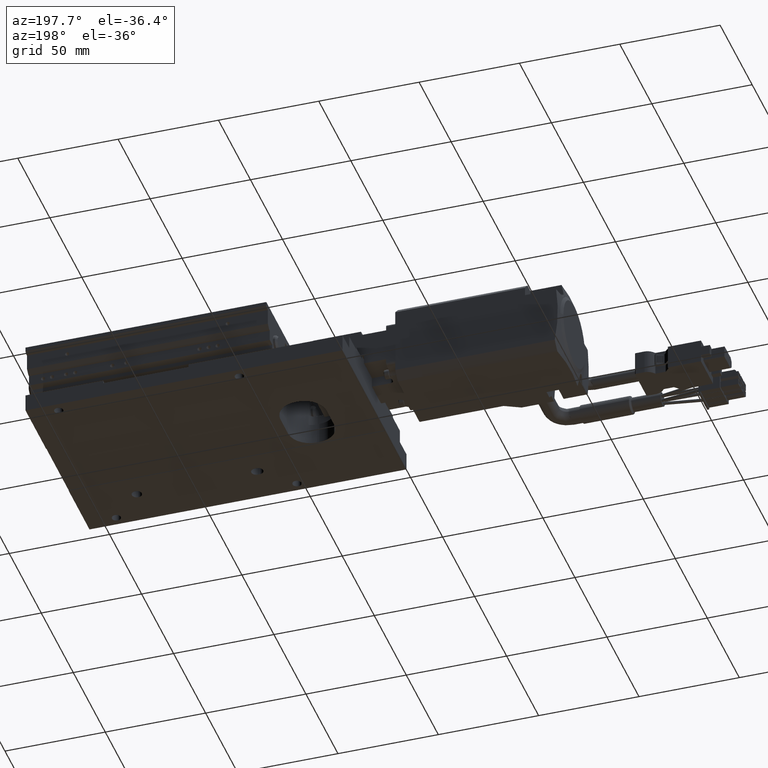
[diagram: clean part render]
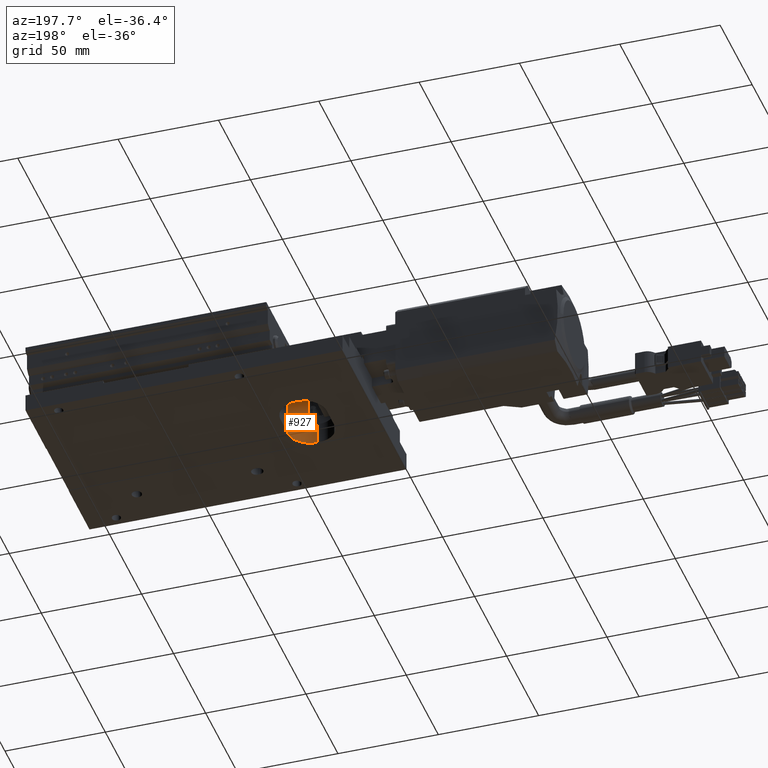
[diagram: same view with one face highlighted and labeled with its STEP entity id]
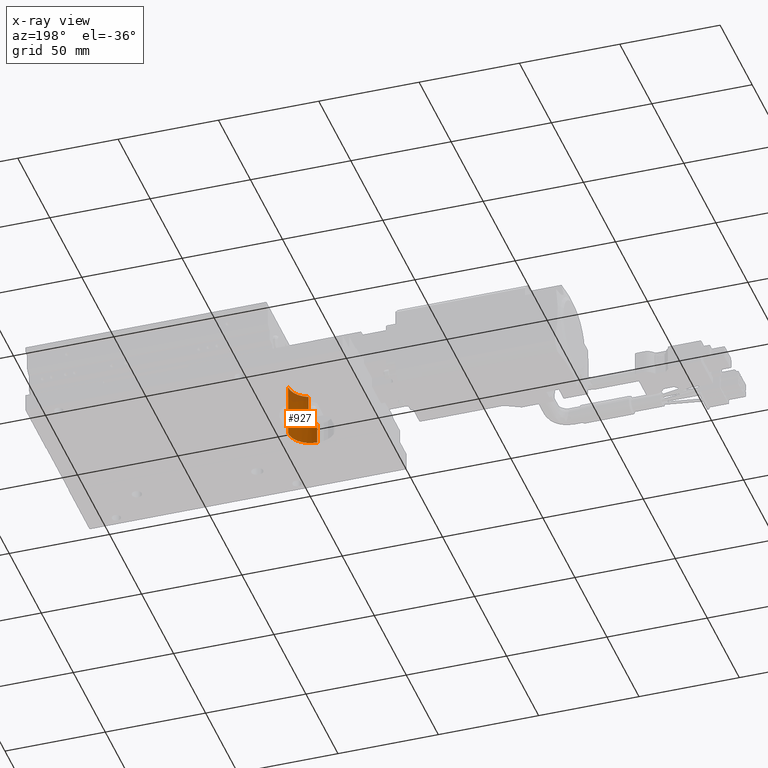
[diagram: x-ray of the same camera — body ghosted, the highlighted face saturated]
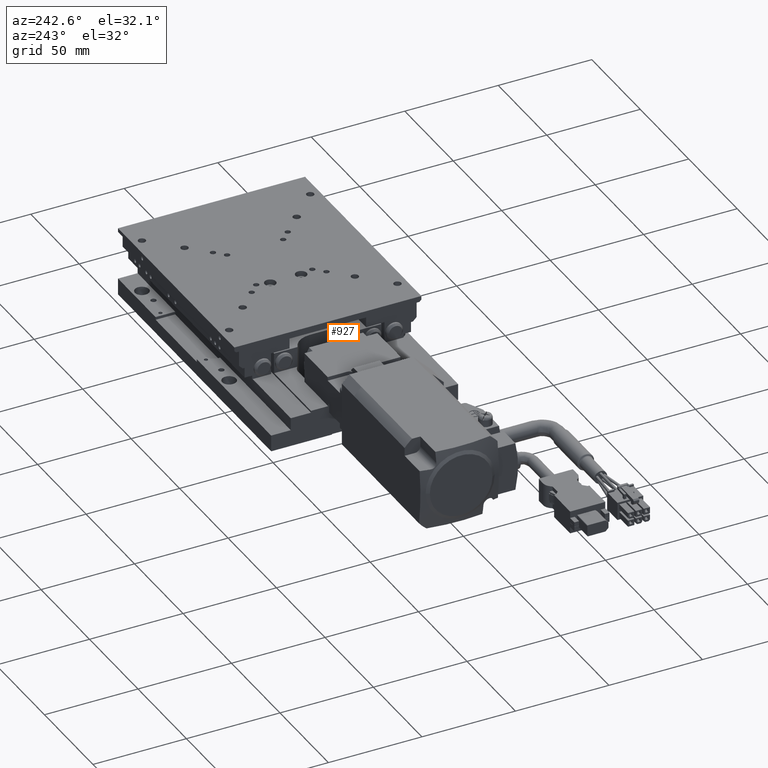
[diagram: same view with one face highlighted and labeled with its STEP entity id]
A machine part, auxiliary view. The second image highlights one B-rep face of the part: STEP entity #927.
The next image is the same camera in x-ray: the body ghosted, the highlighted face saturated — about 13% of this face is hidden behind the body in this view.
A second angle (auxiliary view) of the same face is appended — the face is thin or edge-on in the first view.
In plain terms, the highlighted cylindrical surface (edge-blend (fillet) strip) has radius 11 mm, axis along (0, 0, 1).
Its self-contained STEP definition (entity closure, byte-faithful):
#927=ADVANCED_FACE('',(#9675),#9674,.F.);
#9674=CYLINDRICAL_SURFACE('',#19299,1.10000000000E+01);
#9675=FACE_OUTER_BOUND('',#19300,.T.);
#19296=CARTESIAN_POINT('',(-6.40000000000E+01,-6.00000000000E+00,1.39000000001E+01));
#19297=DIRECTION('',(-0.00000000000E+00,-0.00000000000E+00,1.00000000000E+00));
#19298=DIRECTION('',(-0.00000000000E+00,-1.00000000000E+00,-0.00000000000E+00));
#19299=AXIS2_PLACEMENT_3D('',#19296,#19297,#19298);
#19300=EDGE_LOOP('',(#26197,#26198,#26199,#26200,#26201,#26202,#26203));
#26197=ORIENTED_EDGE('',*,*,#29660,.F.);
#26198=ORIENTED_EDGE('',*,*,#29569,.F.);
#26199=ORIENTED_EDGE('',*,*,#29641,.F.);
#26200=ORIENTED_EDGE('',*,*,#30624,.F.);
#26201=ORIENTED_EDGE('',*,*,#30592,.F.);
#26202=ORIENTED_EDGE('',*,*,#29663,.F.);
#26203=ORIENTED_EDGE('',*,*,#29571,.F.);
#29569=EDGE_CURVE('',#39516,#39502,#39523,.T.);
#29571=EDGE_CURVE('',#39530,#39537,#39538,.T.);
#29641=EDGE_CURVE('',#40005,#39516,#40012,.T.);
#29660=EDGE_CURVE('',#39502,#39530,#40136,.T.);
#29663=EDGE_CURVE('',#39537,#40154,#40155,.T.);
#30592=EDGE_CURVE('',#40154,#37828,#46320,.T.);
#30624=EDGE_CURVE('',#37828,#40005,#46523,.T.);
#37828=VERTEX_POINT('',#55655);
#39502=VERTEX_POINT('',#56772);
#39516=VERTEX_POINT('',#56780);
#39523=LINE('',#56784,#56785);
#39530=VERTEX_POINT('',#56788);
#39537=VERTEX_POINT('',#56792);
#39538=LINE('',#56793,#56794);
#40005=VERTEX_POINT('',#57070);
#40012=CIRCLE('',#57078,1.10000000000E+01);
#40136=CIRCLE('',#57159,1.10000000000E+01);
#40154=VERTEX_POINT('',#57168);
#40155=CIRCLE('',#57172,1.10000000000E+01);
#46320=LINE('',#60946,#60947);
#46523=LINE('',#61084,#61085);
#55655=CARTESIAN_POINT('',(-6.00000000000E+01,-1.62469507660E+01,1.65000000000E+01));
#56772=CARTESIAN_POINT('',(-6.40000000000E+01,-1.70000000000E+01,3.00000000000E-01));
#56780=CARTESIAN_POINT('',(-6.40000000000E+01,-1.70000000000E+01,1.10000000001E+01));
#56784=CARTESIAN_POINT('',(-6.40000000000E+01,-1.70000000000E+01,1.10000000001E+01));
#56785=VECTOR('',#56786,1.07000000001E+01);
#56786=DIRECTION('',(0.00000000000E+00,0.00000000000E+00,-1.00000000000E+00));
#56788=CARTESIAN_POINT('',(-5.30000000000E+01,-6.00000000000E+00,3.00000000000E-01));
#56792=CARTESIAN_POINT('',(-5.30000000000E+01,-6.00000000000E+00,2.75000000001E+01));
#56793=CARTESIAN_POINT('',(-5.30000000000E+01,-6.00000000000E+00,3.00000000000E-01));
#56794=VECTOR('',#56795,2.72000000001E+01);
#56795=DIRECTION('',(0.00000000000E+00,0.00000000000E+00,1.00000000000E+00));
#57070=CARTESIAN_POINT('',(-6.00000000000E+01,-1.62469507660E+01,1.10000000001E+01));
#57075=CARTESIAN_POINT('',(-6.40000000000E+01,-6.00000000000E+00,1.10000000001E+01));
#57076=DIRECTION('',(0.00000000000E+00,0.00000000000E+00,-1.00000000000E+00));
#57077=DIRECTION('',(-0.00000000000E+00,-1.00000000000E+00,-0.00000000000E+00));
#57078=AXIS2_PLACEMENT_3D('',#57075,#57076,#57077);
#57156=CARTESIAN_POINT('',(-6.40000000000E+01,-6.00000000000E+00,3.00000000000E-01));
#57157=DIRECTION('',(0.00000000000E+00,0.00000000000E+00,1.00000000000E+00));
#57158=DIRECTION('',(-0.00000000000E+00,1.00000000000E+00,-0.00000000000E+00));
#57159=AXIS2_PLACEMENT_3D('',#57156,#57157,#57158);
#57168=CARTESIAN_POINT('',(-6.00000000000E+01,-1.62469507660E+01,2.75000000001E+01));
#57169=CARTESIAN_POINT('',(-6.40000000000E+01,-6.00000000000E+00,2.75000000001E+01));
#57170=DIRECTION('',(-0.00000000000E+00,-0.00000000000E+00,-1.00000000000E+00));
#57171=DIRECTION('',(-0.00000000000E+00,1.00000000000E+00,-0.00000000000E+00));
#57172=AXIS2_PLACEMENT_3D('',#57169,#57170,#57171);
#60946=CARTESIAN_POINT('',(-6.00000000000E+01,-1.62469507660E+01,2.75000000001E+01));
#60947=VECTOR('',#60948,1.10000000001E+01);
#60948=DIRECTION('',(0.00000000000E+00,0.00000000000E+00,-1.00000000000E+00));
#61084=CARTESIAN_POINT('',(-6.00000000000E+01,-1.62469507660E+01,1.65000000000E+01));
#61085=VECTOR('',#61086,5.49999999994E+00);
#61086=DIRECTION('',(0.00000000000E+00,0.00000000000E+00,-1.00000000000E+00));